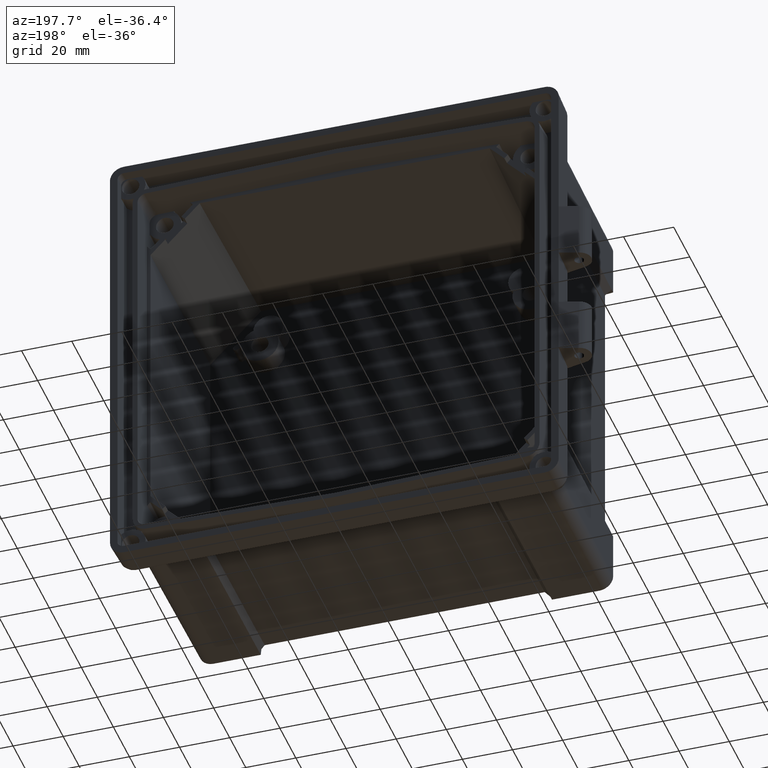
[diagram: clean part render]
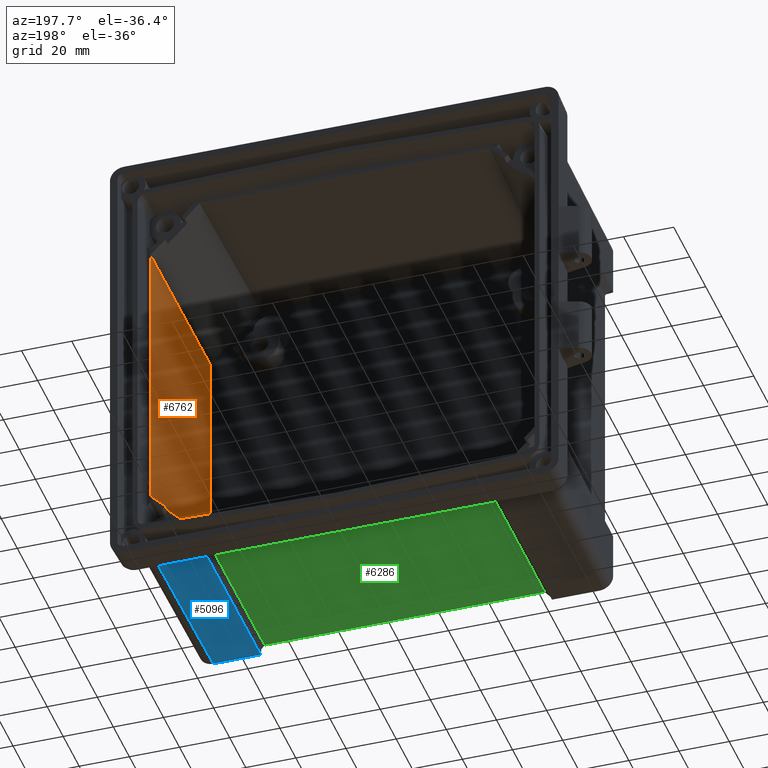
[diagram: same view with three faces highlighted in distinct colors, each labeled with its STEP entity id]
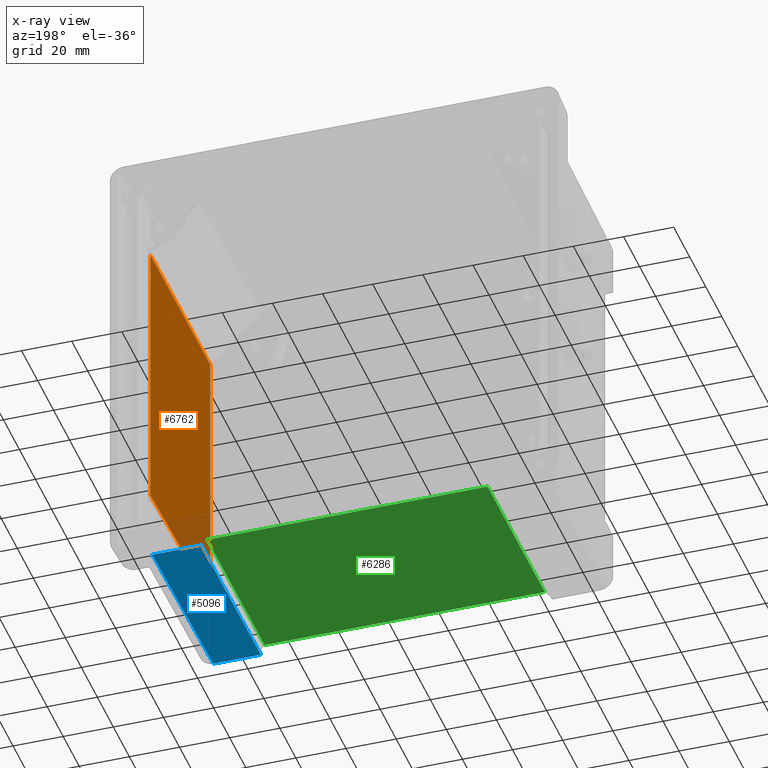
[diagram: x-ray of the same camera — body ghosted, the three highlighted faces saturated]
A machine part, auxiliary view with three faces highlighted in distinct colors.
The next image is the same camera in x-ray (body ghosted, the three faces saturated) — at least one of them is partly hidden behind the body in this view.
Their STEP definitions:

[orange] entity #6762 — the highlighted planar face has unit normal (0.9999, -0.014, -0).
#329 = CARTESIAN_POINT ( 'NONE',  ( 77.40617527031187700, -12.88434796355235400, 56.86095792024777000 ) ) ;
#570 = VECTOR ( 'NONE', #4766, 1000.000000000000100 ) ;
#647 = LINE ( 'NONE', #12908, #9679 ) ;
#838 = EDGE_CURVE ( 'NONE', #12914, #3382, #11820, .T. ) ;
#1154 = CARTESIAN_POINT ( 'NONE',  ( 76.44191852265100800, -81.93966256054521600, 55.26036430171677000 ) ) ;
#1261 = EDGE_CURVE ( 'NONE', #1470, #8519, #8603, .T. ) ;
#1470 = VERTEX_POINT ( 'NONE', #10374 ) ;
#1575 = CARTESIAN_POINT ( 'NONE',  ( 77.40617527031179200, -12.88434796355235400, -144.1679981307345600 ) ) ;
#1978 = LINE ( 'NONE', #10065, #570 ) ;
#2581 = ORIENTED_EDGE ( 'NONE', *, *, #1261, .F. ) ;
#2779 = CARTESIAN_POINT ( 'NONE',  ( 76.41314891541581700, -83.99999999999998600, -144.1679981307345600 ) ) ;
#3051 = EDGE_CURVE ( 'NONE', #13989, #8519, #1978, .T. ) ;
#3312 = CARTESIAN_POINT ( 'NONE',  ( 76.41314891541591700, -83.99999999999998600, 55.21260891928373100 ) ) ;
#3382 = VERTEX_POINT ( 'NONE', #329 ) ;
#3771 = PLANE ( 'NONE',  #13421 ) ;
#4700 = CARTESIAN_POINT ( 'NONE',  ( 76.40437865349457500, -84.62808292246002400, -55.20903566082996200 ) ) ;
#4728 = ORIENTED_EDGE ( 'NONE', *, *, #13046, .F. ) ;
#4766 = DIRECTION ( 'NONE',  ( -0.01395843206272747400, -0.9996340909313550200, 0.02316994652979887500 ) ) ;
#4882 = CARTESIAN_POINT ( 'NONE',  ( 76.41314891541587400, -83.99999999999998600, -55.21260891928378100 ) ) ;
#4950 = DIRECTION ( 'NONE',  ( 3.631026040113358600E-016, 0.0000000000000000000, 1.000000000000000000 ) ) ;
#6063 = DIRECTION ( 'NONE',  ( 0.9999025240093043500, -0.01396218033913775900, -3.630672102252856200E-016 ) ) ;
#6762 = ADVANCED_FACE ( 'NONE', ( #12652 ), #3771, .F. ) ;
#7054 = VECTOR ( 'NONE', #9018, 1000.000000000000100 ) ;
#7433 = VERTEX_POINT ( 'NONE', #8960 ) ;
#7578 = CARTESIAN_POINT ( 'NONE',  ( 77.40617527031184900, -12.88434796355235400, -56.86095792024779900 ) ) ;
#7779 = LINE ( 'NONE', #11156, #7054 ) ;
#7967 = DIRECTION ( 'NONE',  ( 0.01396195443566276500, 0.9998863459155619100, -0.005688504193687593400 ) ) ;
#8444 = DIRECTION ( 'NONE',  ( -5.027035700523635100E-016, 0.0000000000000000000, -1.000000000000000000 ) ) ;
#8519 = VERTEX_POINT ( 'NONE', #4882 ) ;
#8603 = LINE ( 'NONE', #4700, #14277 ) ;
#8803 = VECTOR ( 'NONE', #9362, 1000.000000000000100 ) ;
#8960 = CARTESIAN_POINT ( 'NONE',  ( 76.40616714469133800, -84.49999999999998600, 55.20976434388928300 ) ) ;
#9018 = DIRECTION ( 'NONE',  ( 0.01396195443566276500, 0.9998863459155619100, 0.005688504193687588100 ) ) ;
#9053 = EDGE_CURVE ( 'NONE', #7433, #12914, #7779, .T. ) ;
#9362 = DIRECTION ( 'NONE',  ( 0.01395843206272748800, 0.9996340909313550200, 0.02316994652979885800 ) ) ;
#9380 = ORIENTED_EDGE ( 'NONE', *, *, #838, .T. ) ;
#9679 = VECTOR ( 'NONE', #8444, 1000.000000000000000 ) ;
#10065 = CARTESIAN_POINT ( 'NONE',  ( 76.44191852265096500, -81.93966256054520200, -55.26036430171681200 ) ) ;
#10198 = VECTOR ( 'NONE', #4950, 1000.000000000000000 ) ;
#10371 = LINE ( 'NONE', #1575, #10198 ) ;
#10374 = CARTESIAN_POINT ( 'NONE',  ( 76.40616714469128100, -84.49999999999998600, -55.20976434388932600 ) ) ;
#10565 = ORIENTED_EDGE ( 'NONE', *, *, #9053, .T. ) ;
#11156 = CARTESIAN_POINT ( 'NONE',  ( 76.41084806322626800, -84.16477569089650500, 55.21167148553187300 ) ) ;
#11584 = ORIENTED_EDGE ( 'NONE', *, *, #12161, .F. ) ;
#11820 = LINE ( 'NONE', #1154, #8803 ) ;
#12161 = EDGE_CURVE ( 'NONE', #7433, #1470, #647, .T. ) ;
#12652 = FACE_OUTER_BOUND ( 'NONE', #14247, .T. ) ;
#12908 = CARTESIAN_POINT ( 'NONE',  ( 76.40616714469133800, -84.49999999999998600, 55.21260891928373100 ) ) ;
#12914 = VERTEX_POINT ( 'NONE', #3312 ) ;
#13007 = DIRECTION ( 'NONE',  ( 0.01396218033913775900, 0.9999025240093043500, 0.0000000000000000000 ) ) ;
#13046 = EDGE_CURVE ( 'NONE', #13989, #3382, #10371, .T. ) ;
#13421 = AXIS2_PLACEMENT_3D ( 'NONE', #2779, #6063, #13007 ) ;
#13989 = VERTEX_POINT ( 'NONE', #7578 ) ;
#14192 = ORIENTED_EDGE ( 'NONE', *, *, #3051, .T. ) ;
#14247 = EDGE_LOOP ( 'NONE', ( #14192, #2581, #11584, #10565, #9380, #4728 ) ) ;
#14277 = VECTOR ( 'NONE', #7967, 1000.000000000000200 ) ;

[blue] entity #5096 — the highlighted planar face has unit normal (0, -0.0087, -1).
#1031 = VERTEX_POINT ( 'NONE', #11151 ) ;
#1108 = EDGE_CURVE ( 'NONE', #13481, #2272, #2566, .T. ) ;
#1189 = DIRECTION ( 'NONE',  ( 0.0000000000000000000, -0.008726535498373953800, -0.9999619230641713100 ) ) ;
#2272 = VERTEX_POINT ( 'NONE', #14017 ) ;
#2566 = LINE ( 'NONE', #9013, #3096 ) ;
#3096 = VECTOR ( 'NONE', #4820, 1000.000000000000100 ) ;
#3148 = VERTEX_POINT ( 'NONE', #7082 ) ;
#3638 = CARTESIAN_POINT ( 'NONE',  ( 73.92697228472607700, -90.00000000000000000, -81.94786727501782800 ) ) ;
#4031 = LINE ( 'NONE', #10600, #5637 ) ;
#4147 = CARTESIAN_POINT ( 'NONE',  ( 89.42697228472621900, -15.66676608990630400, -82.59656357981074800 ) ) ;
#4479 = CARTESIAN_POINT ( 'NONE',  ( 76.92482093003852100, -15.65356100210040700, -82.59667881886620900 ) ) ;
#4541 = EDGE_CURVE ( 'NONE', #1031, #5798, #11425, .T. ) ;
#4625 = EDGE_CURVE ( 'NONE', #13143, #1031, #8740, .T. ) ;
#4731 = DIRECTION ( 'NONE',  ( -1.000000000000000000, 0.0000000000000000000, 0.0000000000000000000 ) ) ;
#4820 = DIRECTION ( 'NONE',  ( -0.007857165312980531400, 0.9999310562397356600, -0.008726266127677982700 ) ) ;
#5096 = ADVANCED_FACE ( 'NONE', ( #11804 ), #10200, .T. ) ;
#5324 = ORIENTED_EDGE ( 'NONE', *, *, #10745, .F. ) ;
#5637 = VECTOR ( 'NONE', #11857, 999.9999999999998900 ) ;
#5649 = ORIENTED_EDGE ( 'NONE', *, *, #10945, .T. ) ;
#5798 = VERTEX_POINT ( 'NONE', #13391 ) ;
#5983 = AXIS2_PLACEMENT_3D ( 'NONE', #10248, #1189, #11402 ) ;
#6884 = ORIENTED_EDGE ( 'NONE', *, *, #4625, .T. ) ;
#7082 = CARTESIAN_POINT ( 'NONE',  ( 58.10958041797913900, -15.66676608990629700, -82.59656357981074800 ) ) ;
#7680 = ORIENTED_EDGE ( 'NONE', *, *, #4541, .T. ) ;
#7716 = VECTOR ( 'NONE', #4731, 1000.000000000000000 ) ;
#7894 = LINE ( 'NONE', #3638, #7716 ) ;
#8225 = ORIENTED_EDGE ( 'NONE', *, *, #1108, .T. ) ;
#8262 = LINE ( 'NONE', #4147, #8799 ) ;
#8404 = CARTESIAN_POINT ( 'NONE',  ( 58.05894956458073600, -90.00000000000000000, -81.94786727501782800 ) ) ;
#8740 =( BOUNDED_CURVE ( )  B_SPLINE_CURVE ( 3, ( #8982, #11270, #4479, #12433 ),
 .UNSPECIFIED., .F., .F. ) 
 B_SPLINE_CURVE_WITH_KNOTS ( ( 4, 4 ),
 ( 4.405368760606519300, 4.459397191892360700 ),
 .UNSPECIFIED. ) 
 CURVE ( )  GEOMETRIC_REPRESENTATION_ITEM ( )  RATIONAL_B_SPLINE_CURVE ( ( 1.000000000000000000, 0.9997567588440701100, 0.9997567588440701100, 1.000000000000000000 ) ) 
 REPRESENTATION_ITEM ( '' )  );
#8799 = VECTOR ( 'NONE', #13417, 1000.000000000000000 ) ;
#8841 = CARTESIAN_POINT ( 'NONE',  ( 77.61221837238605300, -13.89690205638267900, -82.61200894923892700 ) ) ;
#8982 = CARTESIAN_POINT ( 'NONE',  ( 75.58690377314025000, -15.66676608990630400, -82.59656357981074800 ) ) ;
#9013 = CARTESIAN_POINT ( 'NONE',  ( 58.04474184914920400, -88.19187514424193400, -81.96364654158320200 ) ) ;
#10200 = PLANE ( 'NONE',  #5983 ) ;
#10248 = CARTESIAN_POINT ( 'NONE',  ( 89.42697228472621900, -14.00000000000000200, -82.61110922711547700 ) ) ;
#10600 = CARTESIAN_POINT ( 'NONE',  ( 58.11113557150709900, -13.97127833851266500, -82.61135987725801000 ) ) ;
#10601 = ORIENTED_EDGE ( 'NONE', *, *, #11592, .T. ) ;
#10745 = EDGE_CURVE ( 'NONE', #13143, #3148, #8262, .T. ) ;
#10945 = EDGE_CURVE ( 'NONE', #5798, #13481, #7894, .T. ) ;
#11071 = DIRECTION ( 'NONE',  ( -0.008726203243944222500, -0.9999238504775704900, 0.008726203243944238200 ) ) ;
#11151 = CARTESIAN_POINT ( 'NONE',  ( 77.59711863603156700, -15.62716046255105700, -82.59690921288444100 ) ) ;
#11270 = CARTESIAN_POINT ( 'NONE',  ( 76.25458628042382300, -15.66676608990631100, -82.59656357981074800 ) ) ;
#11402 = DIRECTION ( 'NONE',  ( 0.0000000000000000000, 0.9999619230641713100, -0.008726535498373953800 ) ) ;
#11425 = LINE ( 'NONE', #8841, #13380 ) ;
#11592 = EDGE_CURVE ( 'NONE', #2272, #3148, #4031, .T. ) ;
#11804 = FACE_OUTER_BOUND ( 'NONE', #14338, .T. ) ;
#11857 = DIRECTION ( 'NONE',  ( 0.0009171954542809206000, 0.9999615024563482900, -0.008726531827785091400 ) ) ;
#12156 = CARTESIAN_POINT ( 'NONE',  ( 75.58690377314025000, -15.66676608990630400, -82.59656357981074800 ) ) ;
#12433 = CARTESIAN_POINT ( 'NONE',  ( 77.59711863603156700, -15.62716046255105700, -82.59690921288444100 ) ) ;
#13143 = VERTEX_POINT ( 'NONE', #12156 ) ;
#13380 = VECTOR ( 'NONE', #11071, 1000.000000000000100 ) ;
#13391 = CARTESIAN_POINT ( 'NONE',  ( 76.94807669816494000, -90.00000000000000000, -81.94786727501782800 ) ) ;
#13417 = DIRECTION ( 'NONE',  ( -1.000000000000000000, 0.0000000000000000000, 0.0000000000000000000 ) ) ;
#13481 = VERTEX_POINT ( 'NONE', #8404 ) ;
#14017 = CARTESIAN_POINT ( 'NONE',  ( 58.04323415047503700, -88.00000000000000000, -81.96532101059934000 ) ) ;
#14338 = EDGE_LOOP ( 'NONE', ( #5324, #6884, #7680, #5649, #8225, #10601 ) ) ;

[green] entity #6286 — the highlighted planar face has unit normal (0, -0.0087, -1).
#137 = EDGE_CURVE ( 'NONE', #8755, #1164, #13079, .T. ) ;
#622 = VECTOR ( 'NONE', #8539, 1000.000000000000100 ) ;
#891 = EDGE_CURVE ( 'NONE', #4464, #8755, #4537, .T. ) ;
#1164 = VERTEX_POINT ( 'NONE', #13567 ) ;
#1206 = CARTESIAN_POINT ( 'NONE',  ( -55.89113560552662800, -16.23289535291627700, -79.93313480319714900 ) ) ;
#1779 = ORIENTED_EDGE ( 'NONE', *, *, #11143, .F. ) ;
#1806 = CARTESIAN_POINT ( 'NONE',  ( -55.82530860919959500, -88.00000000000000000, -79.30683276921627100 ) ) ;
#2629 = EDGE_LOOP ( 'NONE', ( #1779, #4120, #8842, #13974 ) ) ;
#3038 = VERTEX_POINT ( 'NONE', #1206 ) ;
#3401 = PLANE ( 'NONE',  #5061 ) ;
#3505 = DIRECTION ( 'NONE',  ( 1.000000000000000000, -0.0000000000000000000, -0.0000000000000000000 ) ) ;
#3969 = CARTESIAN_POINT ( 'NONE',  ( -81.00000000000001400, -88.00000000000000000, -79.30683276921627100 ) ) ;
#4120 = ORIENTED_EDGE ( 'NONE', *, *, #12928, .T. ) ;
#4464 = VERTEX_POINT ( 'NONE', #1806 ) ;
#4537 = LINE ( 'NONE', #3969, #13585 ) ;
#5061 = AXIS2_PLACEMENT_3D ( 'NONE', #7813, #7862, #10130 ) ;
#6286 = ADVANCED_FACE ( 'NONE', ( #9787 ), #3401, .T. ) ;
#7010 = VECTOR ( 'NONE', #9825, 1000.000000000000100 ) ;
#7813 = CARTESIAN_POINT ( 'NONE',  ( -81.00000000000001400, -16.23289535291627300, -79.93313480319714900 ) ) ;
#7862 = DIRECTION ( 'NONE',  ( 0.0000000000000000000, -0.008726535498377263600, -0.9999619230641713100 ) ) ;
#7903 = VECTOR ( 'NONE', #3505, 1000.000000000000000 ) ;
#8260 = LINE ( 'NONE', #11395, #7903 ) ;
#8539 = DIRECTION ( 'NONE',  ( 0.0009171954542832070700, -0.9999615024563481800, 0.008726531827788399500 ) ) ;
#8755 = VERTEX_POINT ( 'NONE', #12280 ) ;
#8842 = ORIENTED_EDGE ( 'NONE', *, *, #137, .F. ) ;
#9587 = CARTESIAN_POINT ( 'NONE',  ( 55.89102044620089800, -16.35844644663060200, -79.93203913540132500 ) ) ;
#9787 = FACE_OUTER_BOUND ( 'NONE', #2629, .T. ) ;
#9825 = DIRECTION ( 'NONE',  ( 0.0009171954542836887800, 0.9999615024563481800, -0.008726531827788399500 ) ) ;
#10130 = DIRECTION ( 'NONE',  ( 0.0000000000000000000, 0.9999619230641712000, -0.008726535498377261900 ) ) ;
#10544 = LINE ( 'NONE', #12077, #622 ) ;
#11143 = EDGE_CURVE ( 'NONE', #3038, #4464, #10544, .T. ) ;
#11395 = CARTESIAN_POINT ( 'NONE',  ( -81.00000000000001400, -16.23289535291627300, -79.93313480319714900 ) ) ;
#12077 = CARTESIAN_POINT ( 'NONE',  ( -55.89115672829607500, -16.20986650321972500, -79.93333577292382600 ) ) ;
#12280 = CARTESIAN_POINT ( 'NONE',  ( 55.82530860919962400, -88.00000000000000000, -79.30683276921627100 ) ) ;
#12928 = EDGE_CURVE ( 'NONE', #3038, #1164, #8260, .T. ) ;
#13079 = LINE ( 'NONE', #9587, #7010 ) ;
#13567 = CARTESIAN_POINT ( 'NONE',  ( 55.89113560552664900, -16.23289535291627700, -79.93313480319714900 ) ) ;
#13585 = VECTOR ( 'NONE', #13981, 1000.000000000000000 ) ;
#13974 = ORIENTED_EDGE ( 'NONE', *, *, #891, .F. ) ;
#13981 = DIRECTION ( 'NONE',  ( 1.000000000000000000, 0.0000000000000000000, 0.0000000000000000000 ) ) ;